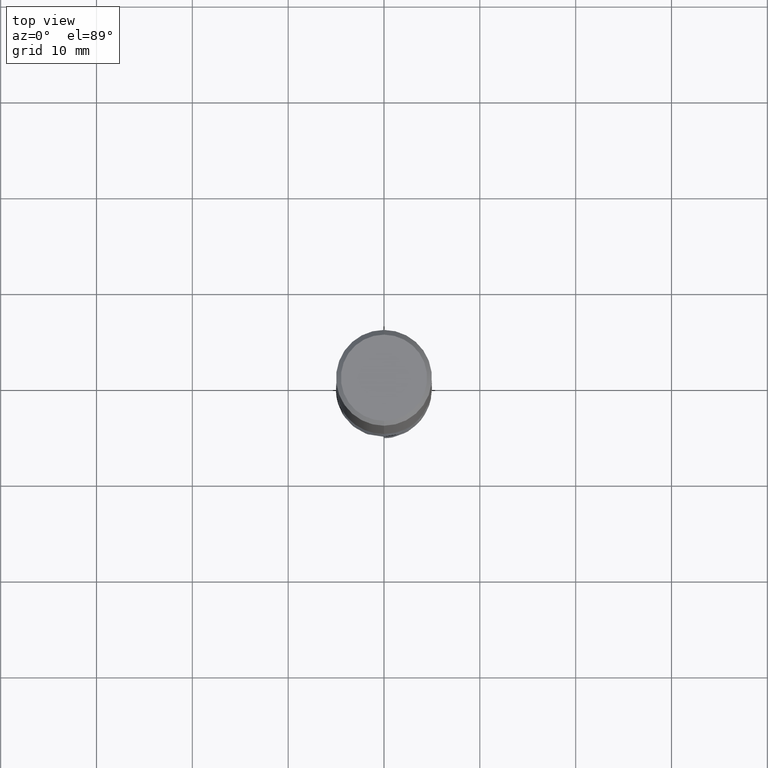
[diagram: clean part render]
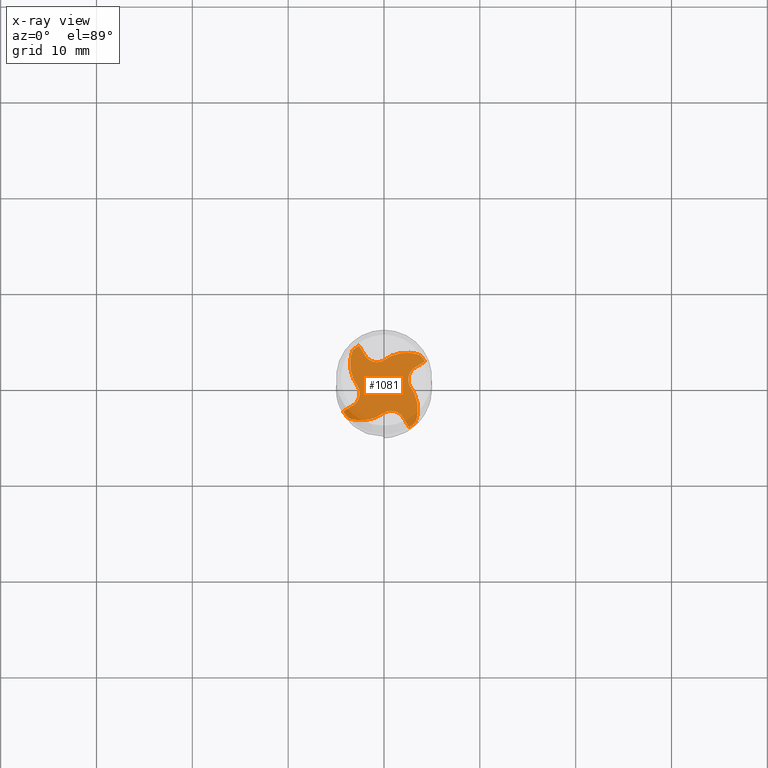
[diagram: x-ray — body ghosted, one internal face saturated and labeled with its STEP entity id]
A machine part, top view, then the same camera in x-ray: the body is ghosted and one INTERNAL B-rep face — a face not visible from any outside direction — is saturated and labeled: STEP entity #1081.
In plain terms, the highlighted planar face has unit normal (-0, 0, 1).
Its self-contained STEP definition (entity closure, byte-faithful):
#527=EDGE_CURVE('',#703,#1481,#1516,.T.);
#551=VERTEX_POINT('',#1541);
#553=EDGE_CURVE('',#809,#1205,#1543,.T.);
#591=VERTEX_POINT('',#1584);
#605=EDGE_CURVE('',#647,#999,#1599,.T.);
#633=EDGE_CURVE('',#967,#881,#1633,.T.);
#643=VERTEX_POINT('',#1643);
#647=VERTEX_POINT('',#1647);
#649=VERTEX_POINT('',#1649);
#663=EDGE_CURVE('',#1187,#865,#1663,.T.);
#703=VERTEX_POINT('',#1704);
#755=EDGE_CURVE('',#551,#865,#1760,.T.);
#765=VERTEX_POINT('',#1771);
#805=EDGE_CURVE('',#765,#1107,#1815,.T.);
#809=VERTEX_POINT('',#1819);
#813=EDGE_CURVE('',#643,#1457,#1823,.T.);
#819=EDGE_CURVE('',#1205,#1245,#1830,.T.);
#827=EDGE_CURVE('',#1245,#1353,#1838,.T.);
#851=EDGE_CURVE('',#967,#765,#1867,.T.);
#865=VERTEX_POINT('',#1884);
#881=VERTEX_POINT('',#1903);
#893=EDGE_CURVE('',#1329,#551,#1916,.T.);
#895=EDGE_CURVE('',#999,#931,#1918,.T.);
#903=EDGE_CURVE('',#1039,#649,#1927,.T.);
#931=VERTEX_POINT('',#1955);
#967=VERTEX_POINT('',#1995);
#971=EDGE_CURVE('',#649,#591,#2000,.T.);
#979=EDGE_CURVE('',#1159,#809,#2008,.T.);
#999=VERTEX_POINT('',#2029);
#1023=EDGE_CURVE('',#1457,#881,#2057,.T.);
#1039=VERTEX_POINT('',#2073);
#1067=EDGE_CURVE('',#1107,#1105,#2103,.T.);
#1079=EDGE_CURVE('',#1105,#1083,#2115,.T.);
#1081=ADVANCED_FACE('',(#2117),#2118,.T.);
#1083=VERTEX_POINT('',#2120);
#1091=EDGE_CURVE('',#1111,#1363,#2128,.T.);
#1105=VERTEX_POINT('',#2143);
#1107=VERTEX_POINT('',#2145);
#1111=VERTEX_POINT('',#2150);
#1119=EDGE_CURVE('',#591,#1329,#2159,.T.);
#1147=EDGE_CURVE('',#931,#643,#2190,.T.);
#1159=VERTEX_POINT('',#2202);
#1187=VERTEX_POINT('',#2233);
#1205=VERTEX_POINT('',#2251);
#1219=EDGE_CURVE('',#1111,#1039,#2266,.T.);
#1243=EDGE_CURVE('',#1187,#647,#2296,.T.);
#1245=VERTEX_POINT('',#2298);
#1257=EDGE_CURVE('',#703,#1159,#2310,.T.);
#1285=EDGE_CURVE('',#1353,#1363,#2342,.T.);
#1295=EDGE_CURVE('',#1483,#1481,#2352,.T.);
#1327=EDGE_CURVE('',#1083,#1483,#2385,.T.);
#1329=VERTEX_POINT('',#2387);
#1353=VERTEX_POINT('',#2414);
#1363=VERTEX_POINT('',#2424);
#1457=VERTEX_POINT('',#2532);
#1481=VERTEX_POINT('',#2558);
#1483=VERTEX_POINT('',#2560);
#1516=CIRCLE('',#2596,4.9999);
#1541=CARTESIAN_POINT('',(3.21236791552506,1.96059927409611,-53.0));
#1543=B_SPLINE_CURVE_WITH_KNOTS('',3,(#2642,#2643,#2644,#2645,#2646,#2647,#2648,#2649),.UNSPECIFIED.,.F.,.F.,(4,2,2,4),(0.0,1.55395800995068,2.99564373161454,4.43728701716914),.UNSPECIFIED.);
#1584=CARTESIAN_POINT('',(2.73875652295535,0.00705434222565993,-53.0));
#1599=B_SPLINE_CURVE_WITH_KNOTS('',3,(#2740,#2741,#2742,#2743,#2744,#2745,#2746,#2747),.UNSPECIFIED.,.F.,.F.,(4,2,2,4),(0.0,1.55395800995067,2.9956437316145,4.43728701716911),.UNSPECIFIED.);
#1633=CIRCLE('',#3185,4.9999);
#1643=CARTESIAN_POINT('',(-0.00700924184387308,2.73326060225744,-53.0));
#1647=CARTESIAN_POINT('',(3.75916761069029,3.27735574731753,-53.0));
#1649=CARTESIAN_POINT('',(3.514858279108,-2.68852362562312,-53.0));
#1663=CIRCLE('',#3276,4.9999);
#1704=CARTESIAN_POINT('',(-3.78408802703998,-3.2679776335851,-53.0));
#1760=B_SPLINE_CURVE_WITH_KNOTS('',3,(#3971,#3972,#3973,#3974,#3975,#3976),.UNSPECIFIED.,.F.,.F.,(4,2,4),(0.0,0.718749972684841,1.43749994537414),.UNSPECIFIED.);
#1771=CARTESIAN_POINT('',(-3.27735574731752,3.75916761069031,-53.0));
#1815=B_SPLINE_CURVE_WITH_KNOTS('',3,(#4153,#4154,#4155,#4156,#4157,#4158,#4159,#4160),.UNSPECIFIED.,.F.,.F.,(4,2,2,4),(0.0,1.55395800995072,2.99564373161464,4.43728701716926),.UNSPECIFIED.);
#1819=CARTESIAN_POINT('',(-2.68852362562315,-3.514858279108,-53.0));
#1823=B_SPLINE_CURVE_WITH_KNOTS('',3,(#4169,#4170,#4171,#4172,#4173,#4174,#4175,#4176,#4177,#4178),.UNSPECIFIED.,.F.,.F.,(4,2,2,2,4),(0.0,0.561652843200112,1.12329462075066,1.68488878012172,2.24805447274018),.UNSPECIFIED.);
#1830=B_SPLINE_CURVE_WITH_KNOTS('',3,(#4186,#4187,#4188,#4189,#4190,#4191),.UNSPECIFIED.,.F.,.F.,(4,2,4),(0.0,0.00731123272665723,0.0146225932187618),.UNSPECIFIED.);
#1838=B_SPLINE_CURVE_WITH_KNOTS('',3,(#4202,#4203,#4204,#4205,#4206,#4207,#4208,#4209,#4210,#4211),.UNSPECIFIED.,.F.,.F.,(4,2,2,2,4),(0.0,0.561652873009511,1.12329456950017,1.68488858534957,2.24664185425884),.UNSPECIFIED.);
#1867=B_SPLINE_CURVE_WITH_KNOTS('',3,(#4570,#4571,#4572,#4573,#4574,#4575,#4576,#4577),.UNSPECIFIED.,.F.,.F.,(4,2,2,4),(0.0,1.55395800995072,2.99564373161464,4.43728701716926),.UNSPECIFIED.);
#1884=CARTESIAN_POINT('',(4.26300903754209,2.61261439095677,-53.0));
#1903=CARTESIAN_POINT('',(-2.61261439095677,4.26300903754209,-53.0));
#1916=B_SPLINE_CURVE_WITH_KNOTS('',3,(#4645,#4646,#4647,#4648,#4649,#4650,#4651,#4652,#4653,#4654),.UNSPECIFIED.,.F.,.F.,(4,2,2,2,4),(0.0,0.561652873009415,1.12329456950014,1.6848885853497,2.24664185665878),.UNSPECIFIED.);
#1918=B_SPLINE_CURVE_WITH_KNOTS('',3,(#4657,#4658,#4659,#4660,#4661,#4662,#4663,#4664),.UNSPECIFIED.,.F.,.F.,(4,2,2,4),(0.0,1.55395800995067,2.9956437316145,4.43728701716911),.UNSPECIFIED.);
#1927=B_SPLINE_CURVE_WITH_KNOTS('',3,(#5001,#5002,#5003,#5004,#5005,#5006,#5007,#5008),.UNSPECIFIED.,.F.,.F.,(4,2,2,4),(0.0,1.55395800995068,2.99564373161454,4.43728701716914),.UNSPECIFIED.);
#1955=CARTESIAN_POINT('',(-0.00705434222565904,2.73875652295535,-53.0));
#1995=CARTESIAN_POINT('',(-3.26797763358509,3.78408802703999,-53.0));
#2000=B_SPLINE_CURVE_WITH_KNOTS('',3,(#5630,#5631,#5632,#5633,#5634,#5635,#5636,#5637),.UNSPECIFIED.,.F.,.F.,(4,2,2,4),(0.0,1.55395800995068,2.99564373161454,4.43728701716914),.UNSPECIFIED.);
#2008=B_SPLINE_CURVE_WITH_KNOTS('',3,(#5647,#5648,#5649,#5650,#5651,#5652,#5653,#5654),.UNSPECIFIED.,.F.,.F.,(4,2,2,4),(0.0,1.55395800995068,2.99564373161454,4.43728701716914),.UNSPECIFIED.);
#2029=CARTESIAN_POINT('',(2.6885236256232,3.514858279108,-53.0));
#2057=B_SPLINE_CURVE_WITH_KNOTS('',3,(#6024,#6025,#6026,#6027,#6028,#6029),.UNSPECIFIED.,.F.,.F.,(4,2,4),(0.0,0.718749972684841,1.43749994537414),.UNSPECIFIED.);
#2073=CARTESIAN_POINT('',(3.2773557473175,-3.75916761069037,-53.0));
#2103=B_SPLINE_CURVE_WITH_KNOTS('',3,(#6225,#6226,#6227,#6228,#6229,#6230,#6231,#6232),.UNSPECIFIED.,.F.,.F.,(4,2,2,4),(0.0,1.55395800995072,2.99564373161464,4.43728701716926),.UNSPECIFIED.);
#2115=B_SPLINE_CURVE_WITH_KNOTS('',3,(#6331,#6332,#6333,#6334,#6335,#6336),.UNSPECIFIED.,.F.,.F.,(4,2,4),(0.0,0.0073113960086642,0.0146229443438771),.UNSPECIFIED.);
#2117=FACE_OUTER_BOUND('',#6338,.T.);
#2118=PLANE('',#6339);
#2120=CARTESIAN_POINT('',(-2.73326060225743,-0.00700924184387275,-53.0));
#2128=CIRCLE('',#6392,4.9999);
#2143=CARTESIAN_POINT('',(-2.73875652295535,-0.00705434222565993,-53.0));
#2145=CARTESIAN_POINT('',(-3.51485827910795,2.68852362562381,-53.0));
#2150=CARTESIAN_POINT('',(3.2679776335851,-3.78408802703998,-53.0));
#2159=B_SPLINE_CURVE_WITH_KNOTS('',3,(#6699,#6700,#6701,#6702,#6703,#6704),.UNSPECIFIED.,.F.,.F.,(4,2,4),(0.0,0.00731125533487543,0.014622524768328),.UNSPECIFIED.);
#2190=B_SPLINE_CURVE_WITH_KNOTS('',3,(#7191,#7192,#7193,#7194,#7195,#7196),.UNSPECIFIED.,.F.,.F.,(4,2,4),(0.0,0.00794720610496246,0.0149642889753079),.UNSPECIFIED.);
#2202=CARTESIAN_POINT('',(-3.75916761069034,-3.27735574731751,-53.0));
#2233=CARTESIAN_POINT('',(3.78408802703998,3.2679776335851,-53.0));
#2251=CARTESIAN_POINT('',(0.00705434222565993,-2.73875652295535,-53.0));
#2266=B_SPLINE_CURVE_WITH_KNOTS('',3,(#7393,#7394,#7395,#7396,#7397,#7398,#7399,#7400),.UNSPECIFIED.,.F.,.F.,(4,2,2,4),(0.0,1.55395800995068,2.99564373161454,4.43728701716914),.UNSPECIFIED.);
#2296=B_SPLINE_CURVE_WITH_KNOTS('',3,(#7579,#7580,#7581,#7582,#7583,#7584,#7585,#7586),.UNSPECIFIED.,.F.,.F.,(4,2,2,4),(0.0,1.55395800995067,2.9956437316145,4.43728701716911),.UNSPECIFIED.);
#2298=CARTESIAN_POINT('',(0.00700924184387342,-2.73326060225743,-53.0));
#2310=B_SPLINE_CURVE_WITH_KNOTS('',3,(#7640,#7641,#7642,#7643,#7644,#7645,#7646,#7647),.UNSPECIFIED.,.F.,.F.,(4,2,2,4),(0.0,1.55395800995068,2.99564373161454,4.43728701716914),.UNSPECIFIED.);
#2342=B_SPLINE_CURVE_WITH_KNOTS('',3,(#7700,#7701,#7702,#7703,#7704,#7705),.UNSPECIFIED.,.F.,.F.,(4,2,4),(0.0,0.718749972684842,1.43749994537414),.UNSPECIFIED.);
#2352=B_SPLINE_CURVE_WITH_KNOTS('',3,(#7734,#7735,#7736,#7737,#7738,#7739),.UNSPECIFIED.,.F.,.F.,(4,2,4),(0.0,0.718749972684841,1.43749994537414),.UNSPECIFIED.);
#2385=B_SPLINE_CURVE_WITH_KNOTS('',3,(#7949,#7950,#7951,#7952,#7953,#7954,#7955,#7956,#7957,#7958),.UNSPECIFIED.,.F.,.F.,(4,2,2,2,4),(0.0,0.561652873009568,1.12329456949985,1.68488858534868,2.24664184924053),.UNSPECIFIED.);
#2387=CARTESIAN_POINT('',(2.73326060225743,0.00700924184387386,-53.0));
#2414=CARTESIAN_POINT('',(1.96059927409612,-3.21236791552506,-53.0));
#2424=CARTESIAN_POINT('',(2.61261439095677,-4.2630090375421,-53.0));
#2532=CARTESIAN_POINT('',(-1.96059927409612,3.21236791552506,-53.0));
#2558=CARTESIAN_POINT('',(-4.2630090375421,-2.61261439095677,-53.0));
#2560=CARTESIAN_POINT('',(-3.21236791552506,-1.96059927409612,-53.0));
#2596=AXIS2_PLACEMENT_3D('',#10576,#10577,#10578);
#2642=CARTESIAN_POINT('',(-4.17795578713016,-3.09328565480652,-53.0));
#2643=CARTESIAN_POINT('',(-3.71652203581956,-3.32863304226522,-53.0));
#2644=CARTESIAN_POINT('',(-3.21353291675499,-3.47160343900252,-53.0));
#2645=CARTESIAN_POINT('',(-2.21835913436387,-3.55361305107734,-53.0));
#2646=CARTESIAN_POINT('',(-1.73621024299965,-3.50596477395292,-53.0));
#2647=CARTESIAN_POINT('',(-0.812328196172821,-3.24106465959036,-53.0));
#2648=CARTESIAN_POINT('',(-0.378196692979854,-3.02599776105415,-53.0));
#2649=CARTESIAN_POINT('',(0.00705434222566381,-2.73875652295535,-53.0));
#2740=CARTESIAN_POINT('',(4.17795578713016,3.09328565480652,-53.0));
#2741=CARTESIAN_POINT('',(3.71652203581956,3.32863304226521,-53.0));
#2742=CARTESIAN_POINT('',(3.21353291675499,3.47160343900252,-53.0));
#2743=CARTESIAN_POINT('',(2.21835913436387,3.55361305107734,-53.0));
#2744=CARTESIAN_POINT('',(1.73621024299965,3.50596477395292,-53.0));
#2745=CARTESIAN_POINT('',(0.812328196172809,3.24106465959036,-53.0));
#2746=CARTESIAN_POINT('',(0.378196692979836,3.02599776105413,-53.0));
#2747=CARTESIAN_POINT('',(-0.00705434222565904,2.73875652295535,-53.0));
#3185=AXIS2_PLACEMENT_3D('',#10750,#10751,#10752);
#3276=AXIS2_PLACEMENT_3D('',#10762,#10763,#10764);
#3971=CARTESIAN_POINT('',(3.21236791547233,1.96059927418108,-53.0));
#3972=CARTESIAN_POINT('',(3.41593660679313,2.08693199821651,-53.0));
#3973=CARTESIAN_POINT('',(3.61950541979492,2.21326452617912,-53.0));
#3974=CARTESIAN_POINT('',(4.02664328916154,2.46592918995726,-53.0));
#3975=CARTESIAN_POINT('',(4.23021234552656,2.59226132577292,-53.0));
#3976=CARTESIAN_POINT('',(4.43378152357256,2.71859326551367,-53.0));
#4153=CARTESIAN_POINT('',(-3.09328565480652,4.17795578713016,-53.0));
#4154=CARTESIAN_POINT('',(-3.32863304226522,3.71652203581955,-53.0));
#4155=CARTESIAN_POINT('',(-3.47160343900252,3.21353291675498,-53.0));
#4156=CARTESIAN_POINT('',(-3.55361305107733,2.21835913436387,-53.0));
#4157=CARTESIAN_POINT('',(-3.50596477395292,1.73621024299966,-53.0));
#4158=CARTESIAN_POINT('',(-3.24106465959036,0.812328196172827,-53.0));
#4159=CARTESIAN_POINT('',(-3.02599776105416,0.378196692979864,-53.0));
#4160=CARTESIAN_POINT('',(-2.73875652295535,-0.00705434222566426,-53.0));
#4169=CARTESIAN_POINT('',(0.00430927868239661,2.74002796567315,-53.0));
#4170=CARTESIAN_POINT('',(-0.155934760469763,2.6432174132636,-53.0));
#4171=CARTESIAN_POINT('',(-0.333556886075702,2.57863113939693,-53.0));
#4172=CARTESIAN_POINT('',(-0.703554662992393,2.52118045115068,-53.0));
#4173=CARTESIAN_POINT('',(-0.892394246213419,2.52886364183619,-53.0));
#4174=CARTESIAN_POINT('',(-1.25648106674695,2.61618344929279,-53.0));
#4175=CARTESIAN_POINT('',(-1.4282489732101,2.6949792897424,-53.0));
#4176=CARTESIAN_POINT('',(-1.73233359642235,2.91428892923695,-53.0));
#4177=CARTESIAN_POINT('',(-1.86161355224002,3.05286534793291,-53.0));
#4178=CARTESIAN_POINT('',(-1.96059927409612,3.21236791552506,-53.0));
#4186=CARTESIAN_POINT('',(0.0070543422847773,-2.73875652295487,-53.0));
#4187=CARTESIAN_POINT('',(0.00703434363336713,-2.73631952743514,-53.0));
#4188=CARTESIAN_POINT('',(0.00701434527710148,-2.73388252570986,-53.0));
#4189=CARTESIAN_POINT('',(0.00697434890718305,-2.72900847966467,-53.0));
#4190=CARTESIAN_POINT('',(0.00695435144314374,-2.72657150232054,-53.0));
#4191=CARTESIAN_POINT('',(0.00693435432526607,-2.72413452498983,-53.0));
#4202=CARTESIAN_POINT('',(-0.00311115689798508,-2.73930492266078,-53.0));
#4203=CARTESIAN_POINT('',(0.157227041697274,-2.6426503783629,-53.0));
#4204=CARTESIAN_POINT('',(0.334911954430672,-2.57823701266508,-53.0));
#4205=CARTESIAN_POINT('',(0.70496545726385,-2.52114648868276,-53.0));
#4206=CARTESIAN_POINT('',(0.893797443215186,-2.52901347966276,-53.0));
#4207=CARTESIAN_POINT('',(1.25779902277745,-2.61668761684005,-53.0));
#4208=CARTESIAN_POINT('',(1.42949010417689,-2.6956505918478,-53.0));
#4209=CARTESIAN_POINT('',(1.73297948669767,-2.91498031336444,-53.0));
#4210=CARTESIAN_POINT('',(1.86186180879277,-3.05326538095629,-53.0));
#4211=CARTESIAN_POINT('',(1.96059927409612,-3.21236791552506,-53.0));
#4570=CARTESIAN_POINT('',(-3.09328565480652,4.17795578713016,-53.0));
#4571=CARTESIAN_POINT('',(-3.32863304226522,3.71652203581955,-53.0));
#4572=CARTESIAN_POINT('',(-3.47160343900252,3.21353291675498,-53.0));
#4573=CARTESIAN_POINT('',(-3.55361305107733,2.21835913436387,-53.0));
#4574=CARTESIAN_POINT('',(-3.50596477395292,1.73621024299966,-53.0));
#4575=CARTESIAN_POINT('',(-3.24106465959036,0.812328196172827,-53.0));
#4576=CARTESIAN_POINT('',(-3.02599776105416,0.378196692979864,-53.0));
#4577=CARTESIAN_POINT('',(-2.73875652295535,-0.00705434222566426,-53.0));
#4645=CARTESIAN_POINT('',(2.73930492388835,-0.00311115893437081,-53.0));
#4646=CARTESIAN_POINT('',(2.64265037932531,0.157227039501013,-53.0));
#4647=CARTESIAN_POINT('',(2.57823701333364,0.334911952127867,-53.0));
#4648=CARTESIAN_POINT('',(2.5211464887393,0.704965454866655,-53.0));
#4649=CARTESIAN_POINT('',(2.529013479407,0.893797440831058,-53.0));
#4650=CARTESIAN_POINT('',(2.6166876159823,1.25779902053846,-53.0));
#4651=CARTESIAN_POINT('',(2.69565059070613,1.42949010206858,-53.0));
#4652=CARTESIAN_POINT('',(2.91498031218945,1.73297948560054,-53.0));
#4653=CARTESIAN_POINT('',(3.05326538027659,1.86186180837095,-53.0));
#4654=CARTESIAN_POINT('',(3.21236791552506,1.96059927409611,-53.0));
#4657=CARTESIAN_POINT('',(4.17795578713016,3.09328565480652,-53.0));
#4658=CARTESIAN_POINT('',(3.71652203581956,3.32863304226521,-53.0));
#4659=CARTESIAN_POINT('',(3.21353291675499,3.47160343900252,-53.0));
#4660=CARTESIAN_POINT('',(2.21835913436387,3.55361305107734,-53.0));
#4661=CARTESIAN_POINT('',(1.73621024299965,3.50596477395292,-53.0));
#4662=CARTESIAN_POINT('',(0.812328196172809,3.24106465959036,-53.0));
#4663=CARTESIAN_POINT('',(0.378196692979836,3.02599776105413,-53.0));
#4664=CARTESIAN_POINT('',(-0.00705434222565904,2.73875652295535,-53.0));
#5001=CARTESIAN_POINT('',(3.09328565480652,-4.17795578713016,-53.0));
#5002=CARTESIAN_POINT('',(3.32863304226522,-3.71652203581956,-53.0));
#5003=CARTESIAN_POINT('',(3.47160343900252,-3.21353291675499,-53.0));
#5004=CARTESIAN_POINT('',(3.55361305107734,-2.21835913436387,-53.0));
#5005=CARTESIAN_POINT('',(3.50596477395292,-1.73621024299965,-53.0));
#5006=CARTESIAN_POINT('',(3.24106465959036,-0.812328196172821,-53.0));
#5007=CARTESIAN_POINT('',(3.02599776105415,-0.378196692979854,-53.0));
#5008=CARTESIAN_POINT('',(2.73875652295535,0.00705434222566381,-53.0));
#5630=CARTESIAN_POINT('',(3.09328565480652,-4.17795578713016,-53.0));
#5631=CARTESIAN_POINT('',(3.32863304226522,-3.71652203581956,-53.0));
#5632=CARTESIAN_POINT('',(3.47160343900252,-3.21353291675499,-53.0));
#5633=CARTESIAN_POINT('',(3.55361305107734,-2.21835913436387,-53.0));
#5634=CARTESIAN_POINT('',(3.50596477395292,-1.73621024299965,-53.0));
#5635=CARTESIAN_POINT('',(3.24106465959036,-0.812328196172821,-53.0));
#5636=CARTESIAN_POINT('',(3.02599776105415,-0.378196692979854,-53.0));
#5637=CARTESIAN_POINT('',(2.73875652295535,0.00705434222566381,-53.0));
#5647=CARTESIAN_POINT('',(-4.17795578713016,-3.09328565480652,-53.0));
#5648=CARTESIAN_POINT('',(-3.71652203581956,-3.32863304226522,-53.0));
#5649=CARTESIAN_POINT('',(-3.21353291675499,-3.47160343900252,-53.0));
#5650=CARTESIAN_POINT('',(-2.21835913436387,-3.55361305107734,-53.0));
#5651=CARTESIAN_POINT('',(-1.73621024299965,-3.50596477395292,-53.0));
#5652=CARTESIAN_POINT('',(-0.812328196172821,-3.24106465959036,-53.0));
#5653=CARTESIAN_POINT('',(-0.378196692979854,-3.02599776105415,-53.0));
#5654=CARTESIAN_POINT('',(0.00705434222566381,-2.73875652295535,-53.0));
#6024=CARTESIAN_POINT('',(-1.96059927418109,3.21236791547233,-53.0));
#6025=CARTESIAN_POINT('',(-2.08693199821651,3.41593660679313,-53.0));
#6026=CARTESIAN_POINT('',(-2.21326452617912,3.61950541979492,-53.0));
#6027=CARTESIAN_POINT('',(-2.46592918995726,4.02664328916154,-53.0));
#6028=CARTESIAN_POINT('',(-2.59226132577292,4.23021234552656,-53.0));
#6029=CARTESIAN_POINT('',(-2.71859326551368,4.43378152357256,-53.0));
#6225=CARTESIAN_POINT('',(-3.09328565480652,4.17795578713016,-53.0));
#6226=CARTESIAN_POINT('',(-3.32863304226522,3.71652203581955,-53.0));
#6227=CARTESIAN_POINT('',(-3.47160343900252,3.21353291675498,-53.0));
#6228=CARTESIAN_POINT('',(-3.55361305107733,2.21835913436387,-53.0));
#6229=CARTESIAN_POINT('',(-3.50596477395292,1.73621024299966,-53.0));
#6230=CARTESIAN_POINT('',(-3.24106465959036,0.812328196172827,-53.0));
#6231=CARTESIAN_POINT('',(-3.02599776105416,0.378196692979864,-53.0));
#6232=CARTESIAN_POINT('',(-2.73875652295535,-0.00705434222566426,-53.0));
#6331=CARTESIAN_POINT('',(-2.73875652295487,-0.00705434228477708,-53.0));
#6332=CARTESIAN_POINT('',(-2.73631947300963,-0.00703434318673635,-53.0));
#6333=CARTESIAN_POINT('',(-2.73388249843301,-0.00701434505327545,-53.0));
#6334=CARTESIAN_POINT('',(-2.72900849853792,-0.00697434906206427,-53.0));
#6335=CARTESIAN_POINT('',(-2.72657151165196,-0.00695435151971938,-53.0));
#6336=CARTESIAN_POINT('',(-2.72413452477132,-0.00693435432347778,-53.0));
#6338=EDGE_LOOP('',(#11252,#11253,#11254,#11255,#11256,#11257,#11258,#11259,#11260,#11261,#11262,#11263,#11264,#11265,#11266,#11267,#11268,#11269,#11270,#11271,#11272,#11273,#11274,#11275,#11276,#11277,#11278,#11279));
#6339=AXIS2_PLACEMENT_3D('',#11280,#11281,#11282);
#6392=AXIS2_PLACEMENT_3D('',#11283,#11284,#11285);
#6699=CARTESIAN_POINT('',(2.73875652295487,0.00705434228479063,-53.0));
#6700=CARTESIAN_POINT('',(2.73631951989932,0.00703434357153945,-53.0));
#6701=CARTESIAN_POINT('',(2.73388252190082,0.00701434524585892,-53.0));
#6702=CARTESIAN_POINT('',(2.72900852120078,0.0069743492480423,-53.0));
#6703=CARTESIAN_POINT('',(2.72657152301573,0.00695435161297081,-53.0));
#6704=CARTESIAN_POINT('',(2.72413452482911,0.00693435432395562,-53.0));
#7191=CARTESIAN_POINT('',(-0.00705434233064239,2.73875652295476,-52.9999999999004));
#7192=CARTESIAN_POINT('',(-0.00703260408063118,2.73610754344662,-52.9999999999004));
#7193=CARTESIAN_POINT('',(-0.00701086643974124,2.73345858833782,-52.9999999999004));
#7194=CARTESIAN_POINT('',(-0.00696993605271768,2.72847070589869,-52.9999999999004));
#7195=CARTESIAN_POINT('',(-0.0069468369007759,2.72565574487025,-53.0));
#7196=CARTESIAN_POINT('',(-0.00692391849234675,2.72286274347792,-53.0));
#7393=CARTESIAN_POINT('',(3.09328565480652,-4.17795578713016,-53.0));
#7394=CARTESIAN_POINT('',(3.32863304226522,-3.71652203581956,-53.0));
#7395=CARTESIAN_POINT('',(3.47160343900252,-3.21353291675499,-53.0));
#7396=CARTESIAN_POINT('',(3.55361305107734,-2.21835913436387,-53.0));
#7397=CARTESIAN_POINT('',(3.50596477395292,-1.73621024299965,-53.0));
#7398=CARTESIAN_POINT('',(3.24106465959036,-0.812328196172821,-53.0));
#7399=CARTESIAN_POINT('',(3.02599776105415,-0.378196692979854,-53.0));
#7400=CARTESIAN_POINT('',(2.73875652295535,0.00705434222566381,-53.0));
#7579=CARTESIAN_POINT('',(4.17795578713016,3.09328565480652,-53.0));
#7580=CARTESIAN_POINT('',(3.71652203581956,3.32863304226521,-53.0));
#7581=CARTESIAN_POINT('',(3.21353291675499,3.47160343900252,-53.0));
#7582=CARTESIAN_POINT('',(2.21835913436387,3.55361305107734,-53.0));
#7583=CARTESIAN_POINT('',(1.73621024299965,3.50596477395292,-53.0));
#7584=CARTESIAN_POINT('',(0.812328196172809,3.24106465959036,-53.0));
#7585=CARTESIAN_POINT('',(0.378196692979836,3.02599776105413,-53.0));
#7586=CARTESIAN_POINT('',(-0.00705434222565904,2.73875652295535,-53.0));
#7640=CARTESIAN_POINT('',(-4.17795578713016,-3.09328565480652,-53.0));
#7641=CARTESIAN_POINT('',(-3.71652203581956,-3.32863304226522,-53.0));
#7642=CARTESIAN_POINT('',(-3.21353291675499,-3.47160343900252,-53.0));
#7643=CARTESIAN_POINT('',(-2.21835913436387,-3.55361305107734,-53.0));
#7644=CARTESIAN_POINT('',(-1.73621024299965,-3.50596477395292,-53.0));
#7645=CARTESIAN_POINT('',(-0.812328196172821,-3.24106465959036,-53.0));
#7646=CARTESIAN_POINT('',(-0.378196692979854,-3.02599776105415,-53.0));
#7647=CARTESIAN_POINT('',(0.00705434222566381,-2.73875652295535,-53.0));
#7700=CARTESIAN_POINT('',(1.9605992741811,-3.21236791547232,-53.0));
#7701=CARTESIAN_POINT('',(2.08693199821652,-3.41593660679312,-53.0));
#7702=CARTESIAN_POINT('',(2.21326452617913,-3.61950541979491,-53.0));
#7703=CARTESIAN_POINT('',(2.46592918995727,-4.02664328916153,-53.0));
#7704=CARTESIAN_POINT('',(2.59226132577292,-4.23021234552656,-53.0));
#7705=CARTESIAN_POINT('',(2.71859326551368,-4.43378152357256,-53.0));
#7734=CARTESIAN_POINT('',(-3.21236791547233,-1.96059927418109,-53.0));
#7735=CARTESIAN_POINT('',(-3.41593660679313,-2.08693199821651,-53.0));
#7736=CARTESIAN_POINT('',(-3.61950541979492,-2.21326452617912,-53.0));
#7737=CARTESIAN_POINT('',(-4.02664328916154,-2.46592918995726,-53.0));
#7738=CARTESIAN_POINT('',(-4.23021234552656,-2.59226132577292,-53.0));
#7739=CARTESIAN_POINT('',(-4.43378152357256,-2.71859326551368,-53.0));
#7949=CARTESIAN_POINT('',(-2.73930492009428,0.00311115264046641,-53.0));
#7950=CARTESIAN_POINT('',(-2.64265037635078,-0.157227046289006,-53.0));
#7951=CARTESIAN_POINT('',(-2.57823701126731,-0.334911959245153,-53.0));
#7952=CARTESIAN_POINT('',(-2.52114648856455,-0.704965462275667,-53.0));
#7953=CARTESIAN_POINT('',(-2.52901348019747,-0.893797448199707,-53.0));
#7954=CARTESIAN_POINT('',(-2.61668761863336,-1.25779902745857,-53.0));
#7955=CARTESIAN_POINT('',(-2.69565059423472,-1.42949010858479,-53.0));
#7956=CARTESIAN_POINT('',(-2.91498031582104,-1.73297948899149,-53.0));
#7957=CARTESIAN_POINT('',(-3.05326538237736,-1.86186180967467,-53.0));
#7958=CARTESIAN_POINT('',(-3.21236791552506,-1.96059927409612,-53.0));
#10576=CARTESIAN_POINT('',(0.0,0.0,-53.0));
#10577=DIRECTION('',(0.0,0.0,-1.0));
#10578=DIRECTION('',(0.0,1.0,0.0));
#10750=CARTESIAN_POINT('',(0.0,0.0,-53.0));
#10751=DIRECTION('',(0.0,0.0,-1.0));
#10752=DIRECTION('',(0.0,1.0,0.0));
#10762=CARTESIAN_POINT('',(0.0,0.0,-53.0));
#10763=DIRECTION('',(0.0,0.0,-1.0));
#10764=DIRECTION('',(0.0,1.0,0.0));
#11252=ORIENTED_EDGE('',*,*,#903,.T.);
#11253=ORIENTED_EDGE('',*,*,#971,.T.);
#11254=ORIENTED_EDGE('',*,*,#1119,.T.);
#11255=ORIENTED_EDGE('',*,*,#893,.T.);
#11256=ORIENTED_EDGE('',*,*,#755,.T.);
#11257=ORIENTED_EDGE('',*,*,#663,.F.);
#11258=ORIENTED_EDGE('',*,*,#1243,.T.);
#11259=ORIENTED_EDGE('',*,*,#605,.T.);
#11260=ORIENTED_EDGE('',*,*,#895,.T.);
#11261=ORIENTED_EDGE('',*,*,#1147,.T.);
#11262=ORIENTED_EDGE('',*,*,#813,.T.);
#11263=ORIENTED_EDGE('',*,*,#1023,.T.);
#11264=ORIENTED_EDGE('',*,*,#633,.F.);
#11265=ORIENTED_EDGE('',*,*,#851,.T.);
#11266=ORIENTED_EDGE('',*,*,#805,.T.);
#11267=ORIENTED_EDGE('',*,*,#1067,.T.);
#11268=ORIENTED_EDGE('',*,*,#1079,.T.);
#11269=ORIENTED_EDGE('',*,*,#1327,.T.);
#11270=ORIENTED_EDGE('',*,*,#1295,.T.);
#11271=ORIENTED_EDGE('',*,*,#527,.F.);
#11272=ORIENTED_EDGE('',*,*,#1257,.T.);
#11273=ORIENTED_EDGE('',*,*,#979,.T.);
#11274=ORIENTED_EDGE('',*,*,#553,.T.);
#11275=ORIENTED_EDGE('',*,*,#819,.T.);
#11276=ORIENTED_EDGE('',*,*,#827,.T.);
#11277=ORIENTED_EDGE('',*,*,#1285,.T.);
#11278=ORIENTED_EDGE('',*,*,#1091,.F.);
#11279=ORIENTED_EDGE('',*,*,#1219,.T.);
#11280=CARTESIAN_POINT('',(0.0,2.49995,-53.0));
#11281=DIRECTION('',(-0.0,0.0,1.0));
#11282=DIRECTION('',(0.0,-1.0,0.0));
#11283=CARTESIAN_POINT('',(0.0,0.0,-53.0));
#11284=DIRECTION('',(0.0,0.0,-1.0));
#11285=DIRECTION('',(0.0,1.0,0.0));